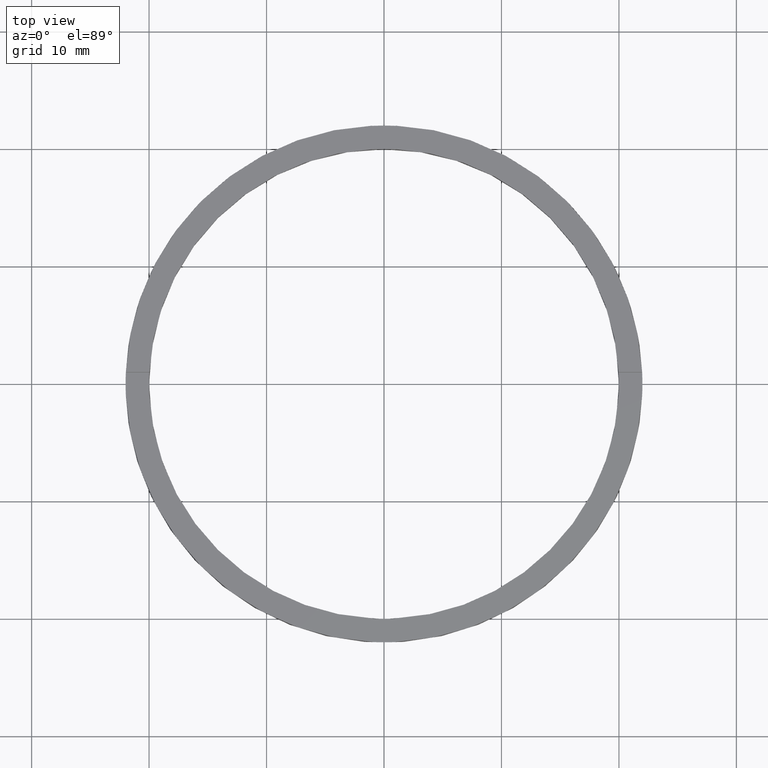
[diagram: clean part render]
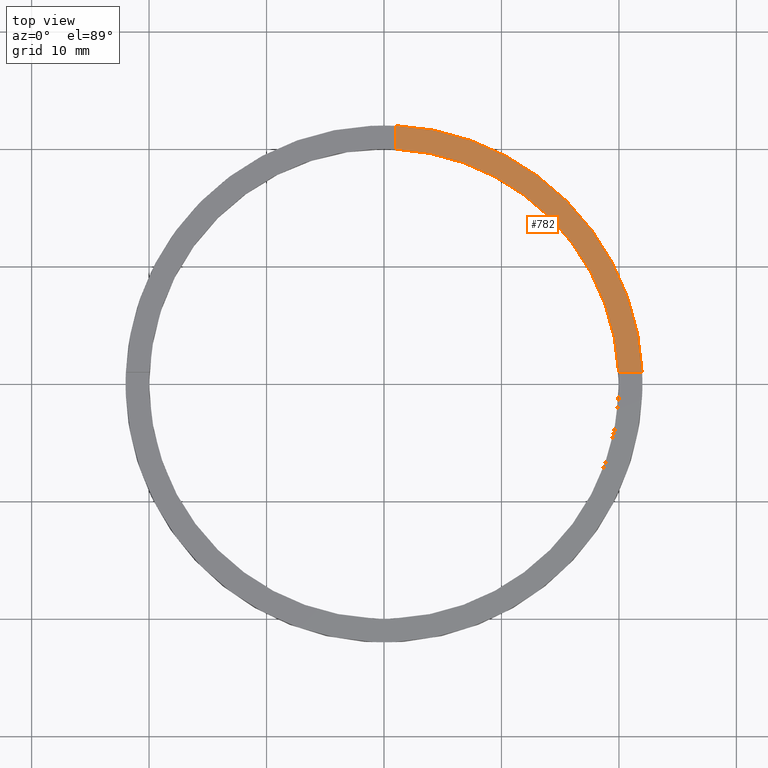
[diagram: same view with one face highlighted and labeled with its STEP entity id]
A machine part, top view. The second image highlights one B-rep face of the part: STEP entity #782.
In plain terms, the highlighted planar face has unit normal (0, 0, 1).
Its self-contained STEP definition (entity closure, byte-faithful):
#2 = EDGE_CURVE ( 'NONE', #728, #453, #232, .T. ) ;
#22 = DIRECTION ( 'NONE',  ( 0.000000000000000000, 1.000000000000000000, 0.000000000000000000 ) ) ;
#26 = CARTESIAN_POINT ( 'NONE',  ( 0.9999999999999742428, 21.97726097583591098, 2.500000000000000000 ) ) ;
#56 = EDGE_CURVE ( 'NONE', #473, #58, #500, .T. ) ;
#58 = VERTEX_POINT ( 'NONE', #26 ) ;
#96 = DIRECTION ( 'NONE',  ( 1.000000000000000000, 0.000000000000000000, -0.000000000000000000 ) ) ;
#97 = EDGE_CURVE ( 'NONE', #728, #58, #498, .T. ) ;
#99 = CARTESIAN_POINT ( 'NONE',  ( 0.9999999999999742428, 19.97498435543818118, 2.500000000000000000 ) ) ;
#118 = DIRECTION ( 'NONE',  ( 1.000000000000000000, 0.000000000000000000, 0.000000000000000000 ) ) ;
#136 = AXIS2_PLACEMENT_3D ( 'NONE', #370, #780, #96 ) ;
#152 = DIRECTION ( 'NONE',  ( 1.000000000000000000, 0.000000000000000000, 0.000000000000000000 ) ) ;
#174 = ORIENTED_EDGE ( 'NONE', *, *, #2, .F. ) ;
#214 = EDGE_LOOP ( 'NONE', ( #667, #239, #174, #487 ) ) ;
#232 = LINE ( 'NONE', #412, #474 ) ;
#239 = ORIENTED_EDGE ( 'NONE', *, *, #299, .F. ) ;
#255 = CIRCLE ( 'NONE', #519, 20.00000000000000000 ) ;
#295 = CARTESIAN_POINT ( 'NONE',  ( 0.000000000000000000, 0.000000000000000000, 2.500000000000000000 ) ) ;
#299 = EDGE_CURVE ( 'NONE', #453, #473, #255, .T. ) ;
#301 = CARTESIAN_POINT ( 'NONE',  ( 21.97726097583591809, 0.9999999999998419042, 2.500000000000000000 ) ) ;
#332 = FACE_OUTER_BOUND ( 'NONE', #214, .T. ) ;
#370 = CARTESIAN_POINT ( 'NONE',  ( 0.000000000000000000, 0.000000000000000000, 2.500000000000000000 ) ) ;
#374 = AXIS2_PLACEMENT_3D ( 'NONE', #616, #648, #118 ) ;
#395 = CARTESIAN_POINT ( 'NONE',  ( 19.97498435543818829, 0.9999999999998419042, 2.500000000000000000 ) ) ;
#412 = CARTESIAN_POINT ( 'NONE',  ( 11.99999999999999289, 0.9999999999998414602, 2.500000000000000000 ) ) ;
#453 = VERTEX_POINT ( 'NONE', #395 ) ;
#462 = CARTESIAN_POINT ( 'NONE',  ( 0.9999999999999742428, 11.99999999999999822, 2.500000000000000000 ) ) ;
#473 = VERTEX_POINT ( 'NONE', #99 ) ;
#474 = VECTOR ( 'NONE', #646, 1000.000000000000000 ) ;
#486 = VECTOR ( 'NONE', #22, 1000.000000000000000 ) ;
#487 = ORIENTED_EDGE ( 'NONE', *, *, #97, .T. ) ;
#498 = CIRCLE ( 'NONE', #374, 22.00000000000000000 ) ;
#500 = LINE ( 'NONE', #462, #486 ) ;
#519 = AXIS2_PLACEMENT_3D ( 'NONE', #295, #604, #152 ) ;
#604 = DIRECTION ( 'NONE',  ( 0.000000000000000000, 0.000000000000000000, 1.000000000000000000 ) ) ;
#616 = CARTESIAN_POINT ( 'NONE',  ( 0.000000000000000000, 0.000000000000000000, 2.500000000000000000 ) ) ;
#640 = PLANE ( 'NONE',  #136 ) ;
#646 = DIRECTION ( 'NONE',  ( -1.000000000000000000, -4.336808689942018352E-17, -0.000000000000000000 ) ) ;
#648 = DIRECTION ( 'NONE',  ( 0.000000000000000000, 0.000000000000000000, 1.000000000000000000 ) ) ;
#667 = ORIENTED_EDGE ( 'NONE', *, *, #56, .F. ) ;
#728 = VERTEX_POINT ( 'NONE', #301 ) ;
#780 = DIRECTION ( 'NONE',  ( 0.000000000000000000, 0.000000000000000000, 1.000000000000000000 ) ) ;
#782 = ADVANCED_FACE ( 'NONE', ( #332 ), #640, .T. ) ;